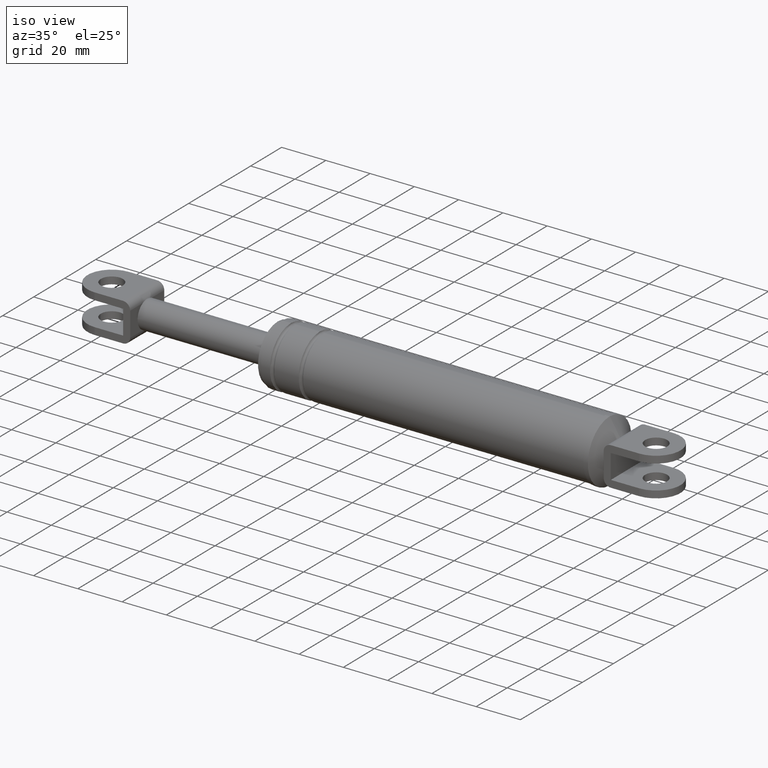
[diagram: clean part render]
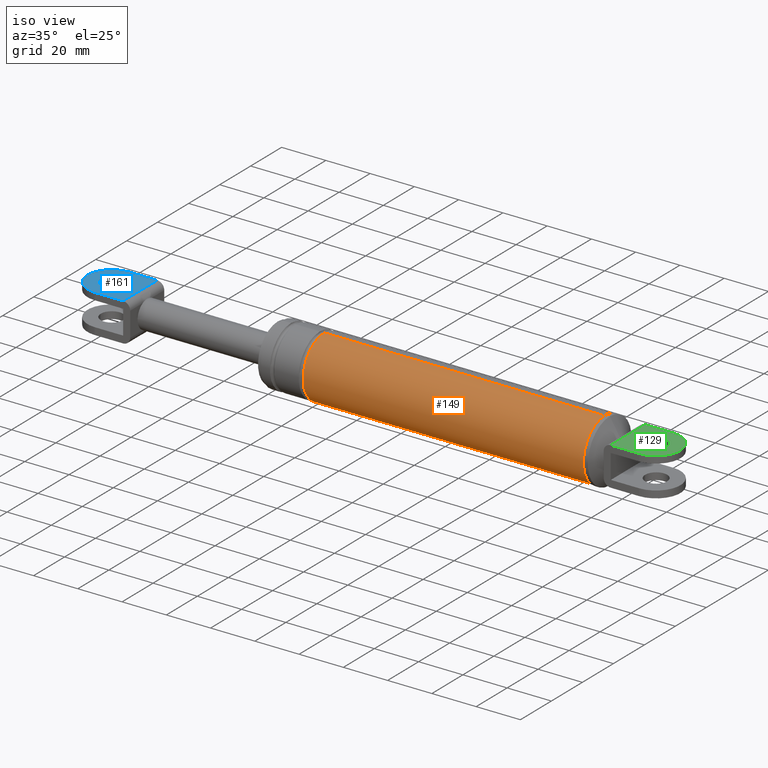
[diagram: same view with three faces highlighted in distinct colors, each labeled with its STEP entity id]
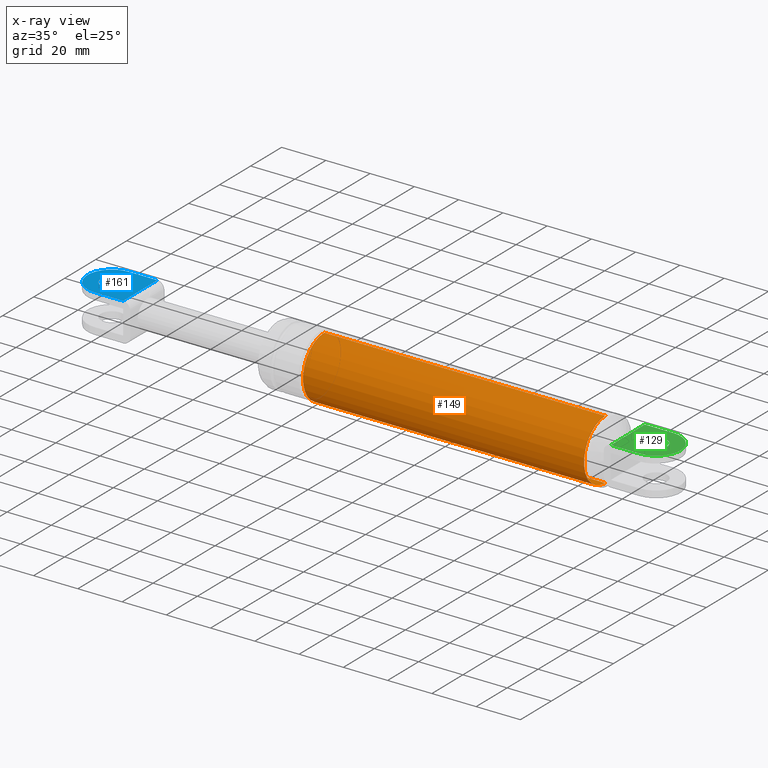
[diagram: x-ray of the same camera — body ghosted, the three highlighted faces saturated]
A machine part, iso view with three faces highlighted in distinct colors.
The next image is the same camera in x-ray (body ghosted, the three faces saturated) — at least one of them is partly hidden behind the body in this view.
Their STEP definitions:

[orange] entity #149 — the highlighted cylindrical surface (partial cylindrical patch) has radius 13.7 mm, axis along (-1, -0, -0).
#149=ADVANCED_FACE('',(#553),#552,.T.);
#552=CYLINDRICAL_SURFACE('',#1564,1.37000000000E+001);
#553=FACE_OUTER_BOUND('',#1565,.T.);
#1561=CARTESIAN_POINT('',(1.75331797029E+002,-1.11130927453E-013,1.19820542859E+002));
#1562=DIRECTION('',(-1.00000000000E+000,-1.46694769862E-015,-3.54452212500E-031));
#1563=DIRECTION('',(1.15450556906E-029,-8.11174652940E-015,1.00000000000E+000));
#1564=AXIS2_PLACEMENT_3D('',#1561,#1562,#1563);
#1565=EDGE_LOOP('',(#2145,#2146,#2147,#2148));
#2145=ORIENTED_EDGE('',*,*,#2316,.T.);
#2146=ORIENTED_EDGE('',*,*,#2371,.T.);
#2147=ORIENTED_EDGE('',*,*,#2370,.F.);
#2148=ORIENTED_EDGE('',*,*,#2372,.F.);
#2316=EDGE_CURVE('',#2671,#2670,#2678,.T.);
#2370=EDGE_CURVE('',#3016,#3009,#3029,.T.);
#2371=EDGE_CURVE('',#2670,#3009,#3035,.T.);
#2372=EDGE_CURVE('',#2671,#3016,#3041,.T.);
#2670=VERTEX_POINT('',#3622);
#2671=VERTEX_POINT('',#3623);
#2678=CIRCLE('',#3631,1.37000000000E+001);
#3009=VERTEX_POINT('',#3837);
#3016=VERTEX_POINT('',#3843);
#3029=CIRCLE('',#3858,1.37000000000E+001);
#3035=(BOUNDED_CURVE() B_SPLINE_CURVE(1,(#3859,#3860),.UNSPECIFIED.,.F.,.F.) B_SPLINE_CURVE_WITH_KNOTS((2,2),(6.80272107940E-002,9.31972788954E-001),.UNSPECIFIED.) CURVE() GEOMETRIC_REPRESENTATION_ITEM() RATIONAL_B_SPLINE_CURVE((1.00000000000E+000,1.00000000000E+000)) REPRESENTATION_ITEM('') );
#3041=(BOUNDED_CURVE() B_SPLINE_CURVE(1,(#3861,#3862),.UNSPECIFIED.,.F.,.F.) B_SPLINE_CURVE_WITH_KNOTS((2,2),(6.80272108844E-002,9.31972789116E-001),.UNSPECIFIED.) CURVE() GEOMETRIC_REPRESENTATION_ITEM() RATIONAL_B_SPLINE_CURVE((7.50000000000E-001,7.50000000000E-001)) REPRESENTATION_ITEM('') );
#3622=CARTESIAN_POINT('',(3.12331797029E+002,2.30926389122E-014,1.33520542859E+002));
#3623=CARTESIAN_POINT('',(3.12331797029E+002,7.52689430633E-015,1.06120542859E+002));
#3628=CARTESIAN_POINT('',(3.12331797029E+002,1.12117697108E-014,1.19820542859E+002));
#3629=DIRECTION('',(-1.00000000000E+000,1.46694769862E-015,1.38016011913E-030));
#3630=DIRECTION('',(-2.60582257749E-030,-8.35518852861E-016,-1.00000000000E+000));
#3631=AXIS2_PLACEMENT_3D('',#3628,#3629,#3630);
#3837=CARTESIAN_POINT('',(1.85331797029E+002,2.30926389122E-014,1.33520542859E+002));
#3843=CARTESIAN_POINT('',(1.85331797029E+002,7.52689430633E-015,1.06120542859E+002));
#3855=CARTESIAN_POINT('',(1.85331797029E+002,1.12117697108E-014,1.19820542859E+002));
#3856=DIRECTION('',(-1.00000000000E+000,-7.33473849312E-016,-6.90080059566E-031));
#3857=DIRECTION('',(1.30291128875E-030,-8.35518852861E-016,-1.00000000000E+000));
#3858=AXIS2_PLACEMENT_3D('',#3855,#3856,#3857);
#3859=CARTESIAN_POINT('',(3.12331797042E+002,-2.12900201747E-014,1.33520542859E+002));
#3860=CARTESIAN_POINT('',(1.85331797052E+002,-2.07592377885E-013,1.33520542859E+002));
#3861=CARTESIAN_POINT('',(3.12331797029E+002,2.00869303554E-013,1.06120542859E+002));
#3862=CARTESIAN_POINT('',(1.85331797029E+002,1.46619929601E-014,1.06120542859E+002));

[blue] entity #161 — the highlighted planar face has unit normal (0, 0, 1).
#161=ADVANCED_FACE('',(#674,#675),#673,.T.);
#673=PLANE('',#1894);
#674=FACE_OUTER_BOUND('',#1895,.T.);
#675=FACE_BOUND('',#1896,.T.);
#1891=CARTESIAN_POINT('',(7.59428807869E+001,-1.32000000000E+001,1.28520539859E+002));
#1892=DIRECTION('',(0.00000000000E+000,0.00000000000E+000,1.00000000000E+000));
#1893=DIRECTION('',(1.00000000000E+000,0.00000000000E+000,0.00000000000E+000));
#1894=AXIS2_PLACEMENT_3D('',#1891,#1892,#1893);
#1895=EDGE_LOOP('',(#2211,#2212,#2213,#2214,#2215,#2216));
#1896=EDGE_LOOP('',(#2217,#2218));
#2211=ORIENTED_EDGE('',*,*,#2381,.F.);
#2212=ORIENTED_EDGE('',*,*,#2403,.T.);
#2213=ORIENTED_EDGE('',*,*,#2401,.T.);
#2214=ORIENTED_EDGE('',*,*,#2417,.T.);
#2215=ORIENTED_EDGE('',*,*,#2388,.T.);
#2216=ORIENTED_EDGE('',*,*,#2418,.T.);
#2217=ORIENTED_EDGE('',*,*,#2419,.F.);
#2218=ORIENTED_EDGE('',*,*,#2420,.F.);
#2381=EDGE_CURVE('',#3095,#3102,#3103,.T.);
#2388=EDGE_CURVE('',#3149,#3150,#3151,.T.);
#2401=EDGE_CURVE('',#3211,#3233,#3240,.T.);
#2403=EDGE_CURVE('',#3095,#3211,#3252,.T.);
#2417=EDGE_CURVE('',#3233,#3149,#3343,.T.);
#2418=EDGE_CURVE('',#3150,#3102,#3349,.T.);
#2419=EDGE_CURVE('',#3355,#3356,#3357,.T.);
#2420=EDGE_CURVE('',#3356,#3355,#3363,.T.);
#3095=VERTEX_POINT('',#3888);
#3102=VERTEX_POINT('',#3893);
#3103=LINE('',#3894,#3895);
#3149=VERTEX_POINT('',#3920);
#3150=VERTEX_POINT('',#3921);
#3151=LINE('',#3922,#3923);
#3211=VERTEX_POINT('',#3957);
#3233=VERTEX_POINT('',#3973);
#3240=(BOUNDED_CURVE() B_SPLINE_CURVE(3,(#3978,#3979,#3980,#3981,#3982,#3983,#3984,#3985,#3986,#3987),.UNSPECIFIED.,.F.,.F.) B_SPLINE_CURVE_WITH_KNOTS((4,2,2,2,4),(0.00000000000E+000,1.48458878572E-003,2.96917757145E-003,4.45376635717E-003,5.93835514290E-003),.UNSPECIFIED.) CURVE() GEOMETRIC_REPRESENTATION_ITEM() RATIONAL_B_SPLINE_CURVE((1.00000000000E+000,1.00000000000E+000,1.00000000000E+000,1.00000000000E+000,1.00000000000E+000,1.00000000000E+000,1.00000000000E+000,1.00000000000E+000,1.00000000000E+000,1.00000000000E+000)) REPRESENTATION_ITEM('') );
#3252=LINE('',#3991,#3992);
#3343=LINE('',#4055,#4056);
#3349=CIRCLE('',#4061,1.10000000000E+001);
#3355=VERTEX_POINT('',#4062);
#3356=VERTEX_POINT('',#4063);
#3357=CIRCLE('',#4067,5.00000000000E+000);
#3363=CIRCLE('',#4071,5.00000000000E+000);
#3888=CARTESIAN_POINT('',(1.02131797029E+002,-1.10000000000E+001,1.28520539859E+002));
#3893=CARTESIAN_POINT('',(8.93317960687E+001,-1.10000000000E+001,1.28520539859E+002));
#3894=CARTESIAN_POINT('',(1.02131797029E+002,-1.10000000000E+001,1.28520539859E+002));
#3895=VECTOR('',#3896,1.28000009599E+001);
#3896=DIRECTION('',(-1.00000000000E+000,0.00000000000E+000,0.00000000000E+000));
#3920=CARTESIAN_POINT('',(1.02131797029E+002,1.10000000000E+001,1.28520539859E+002));
#3921=CARTESIAN_POINT('',(8.93317960687E+001,1.10000000000E+001,1.28520539859E+002));
#3922=CARTESIAN_POINT('',(1.02131797029E+002,1.10000000000E+001,1.28520539859E+002));
#3923=VECTOR('',#3924,1.28000009599E+001);
#3924=DIRECTION('',(-1.00000000000E+000,0.00000000000E+000,0.00000000000E+000));
#3957=CARTESIAN_POINT('',(1.02131797029E+002,-2.96859107996E+000,1.28520539859E+002));
#3973=CARTESIAN_POINT('',(1.02131797029E+002,2.96859107996E+000,1.28520539859E+002));
#3978=CARTESIAN_POINT('',(1.02131797029E+002,-2.96859107996E+000,1.28520539859E+002));
#3979=CARTESIAN_POINT('',(1.02131797029E+002,-2.47372795974E+000,1.28520539859E+002));
#3980=CARTESIAN_POINT('',(1.02157336786E+002,-1.97942147773E+000,1.28520539859E+002));
#3981=CARTESIAN_POINT('',(1.02202559924E+002,-9.90710003313E-001,1.28520539859E+002));
#3982=CARTESIAN_POINT('',(1.02220899883E+002,-4.96254738101E-001,1.28520539859E+002));
#3983=CARTESIAN_POINT('',(1.02220959446E+002,4.93509042159E-001,1.28520539859E+002));
#3984=CARTESIAN_POINT('',(1.02202644824E+002,9.88746016336E-001,1.28520539859E+002));
#3985=CARTESIAN_POINT('',(1.02157391557E+002,1.97833152203E+000,1.28520539859E+002));
#3986=CARTESIAN_POINT('',(1.02131797029E+002,2.47302251272E+000,1.28520539859E+002));
#3987=CARTESIAN_POINT('',(1.02131797029E+002,2.96859107996E+000,1.28520539859E+002));
#3991=CARTESIAN_POINT('',(1.02131797029E+002,-1.10000000000E+001,1.28520539859E+002));
#3992=VECTOR('',#3993,8.03140892004E+000);
#3993=DIRECTION('',(0.00000000000E+000,1.00000000000E+000,0.00000000000E+000));
#4055=CARTESIAN_POINT('',(1.02131797029E+002,2.96859107996E+000,1.28520539859E+002));
#4056=VECTOR('',#4057,8.03140892004E+000);
#4057=DIRECTION('',(0.00000000000E+000,1.00000000000E+000,0.00000000000E+000));
#4058=CARTESIAN_POINT('',(8.93317970286E+001,0.00000000000E+000,1.28520539859E+002));
#4059=DIRECTION('',(0.00000000000E+000,0.00000000000E+000,1.00000000000E+000));
#4060=DIRECTION('',(8.72664675068E-008,-1.00000000000E+000,-0.00000000000E+000));
#4061=AXIS2_PLACEMENT_3D('',#4058,#4059,#4060);
#4062=CARTESIAN_POINT('',(8.43317970286E+001,-5.92118946467E-016,1.28520539859E+002));
#4063=CARTESIAN_POINT('',(9.43317970286E+001,-6.12323399574E-016,1.28520539859E+002));
#4064=CARTESIAN_POINT('',(8.93317970286E+001,-3.06161699787E-016,1.28520539859E+002));
#4065=DIRECTION('',(-1.23051628678E-031,2.00971834712E-015,1.00000000000E+000));
#4066=DIRECTION('',(1.00000000000E+000,6.12282954249E-017,-0.00000000000E+000));
#4067=AXIS2_PLACEMENT_3D('',#4064,#4065,#4066);
#4068=CARTESIAN_POINT('',(8.93317970286E+001,-3.06161699787E-016,1.28520539859E+002));
#4069=DIRECTION('',(-1.23051628678E-031,2.00971834712E-015,1.00000000000E+000));
#4070=DIRECTION('',(1.00000000000E+000,6.12282954249E-017,-0.00000000000E+000));
#4071=AXIS2_PLACEMENT_3D('',#4068,#4069,#4070);

[green] entity #129 — the highlighted planar face has unit normal (0, 0, 1).
#129=ADVANCED_FACE('',(#350,#351),#349,.T.);
#349=PLANE('',#1325);
#350=FACE_OUTER_BOUND('',#1326,.T.);
#351=FACE_BOUND('',#1327,.T.);
#1322=CARTESIAN_POINT('',(3.48715894405E+002,-1.32000011519E+001,1.28520539859E+002));
#1323=DIRECTION('',(0.00000000000E+000,-0.00000000000E+000,1.00000000000E+000));
#1324=DIRECTION('',(0.00000000000E+000,1.00000000000E+000,0.00000000000E+000));
#1325=AXIS2_PLACEMENT_3D('',#1322,#1323,#1324);
#1326=EDGE_LOOP('',(#2051,#2052,#2053,#2054,#2055,#2056));
#1327=EDGE_LOOP('',(#2057,#2058));
#2051=ORIENTED_EDGE('',*,*,#2309,.F.);
#2052=ORIENTED_EDGE('',*,*,#2333,.T.);
#2053=ORIENTED_EDGE('',*,*,#2328,.T.);
#2054=ORIENTED_EDGE('',*,*,#2325,.T.);
#2055=ORIENTED_EDGE('',*,*,#2303,.T.);
#2056=ORIENTED_EDGE('',*,*,#2336,.T.);
#2057=ORIENTED_EDGE('',*,*,#2339,.F.);
#2058=ORIENTED_EDGE('',*,*,#2340,.F.);
#2303=EDGE_CURVE('',#2588,#2581,#2589,.T.);
#2309=EDGE_CURVE('',#2623,#2630,#2631,.T.);
#2325=EDGE_CURVE('',#2738,#2588,#2739,.T.);
#2328=EDGE_CURVE('',#2758,#2738,#2759,.T.);
#2333=EDGE_CURVE('',#2623,#2758,#2791,.T.);
#2336=EDGE_CURVE('',#2581,#2630,#2809,.T.);
#2339=EDGE_CURVE('',#2827,#2828,#2829,.T.);
#2340=EDGE_CURVE('',#2828,#2827,#2835,.T.);
#2581=VERTEX_POINT('',#3567);
#2588=VERTEX_POINT('',#3571);
#2589=LINE('',#3572,#3573);
#2623=VERTEX_POINT('',#3593);
#2630=VERTEX_POINT('',#3598);
#2631=LINE('',#3599,#3600);
#2738=VERTEX_POINT('',#3668);
#2739=LINE('',#3669,#3670);
#2758=VERTEX_POINT('',#3680);
#2759=(BOUNDED_CURVE() B_SPLINE_CURVE(3,(#3681,#3682,#3683,#3684,#3685,#3686,#3687,#3688,#3689,#3690),.UNSPECIFIED.,.F.,.F.) B_SPLINE_CURVE_WITH_KNOTS((4,2,2,2,4),(0.00000000000E+000,1.21207515280E-003,2.42415030559E-003,3.63622545839E-003,4.84830061118E-003),.UNSPECIFIED.) CURVE() GEOMETRIC_REPRESENTATION_ITEM() RATIONAL_B_SPLINE_CURVE((1.00000000000E+000,1.00000000000E+000,1.00000000000E+000,1.00000000000E+000,1.00000000000E+000,1.00000000000E+000,1.00000000000E+000,1.00000000000E+000,1.00000000000E+000,1.00000000000E+000)) REPRESENTATION_ITEM('') );
#2791=LINE('',#3708,#3709);
#2809=CIRCLE('',#3722,1.10000000000E+001);
#2827=VERTEX_POINT('',#3731);
#2828=VERTEX_POINT('',#3732);
#2829=CIRCLE('',#3736,5.00000000000E+000);
#2835=CIRCLE('',#3740,5.00000000000E+000);
#3567=CARTESIAN_POINT('',(3.35331796069E+002,-1.10000000000E+001,1.28520539859E+002));
#3571=CARTESIAN_POINT('',(3.22531797029E+002,-1.10000000000E+001,1.28520539859E+002));
#3572=CARTESIAN_POINT('',(3.22531797029E+002,-1.10000000000E+001,1.28520539859E+002));
#3573=VECTOR('',#3574,1.27999990401E+001);
#3574=DIRECTION('',(1.00000000000E+000,0.00000000000E+000,0.00000000000E+000));
#3593=CARTESIAN_POINT('',(3.22531797029E+002,1.10000000000E+001,1.28520539859E+002));
#3598=CARTESIAN_POINT('',(3.35331796069E+002,1.10000000000E+001,1.28520539859E+002));
#3599=CARTESIAN_POINT('',(3.22531797029E+002,1.10000000000E+001,1.28520539859E+002));
#3600=VECTOR('',#3601,1.27999990401E+001);
#3601=DIRECTION('',(1.00000000000E+000,0.00000000000E+000,0.00000000000E+000));
#3668=CARTESIAN_POINT('',(3.22531797029E+002,-2.42391066068E+000,1.28520539859E+002));
#3669=CARTESIAN_POINT('',(3.22531797029E+002,-2.42391066068E+000,1.28520539859E+002));
#3670=VECTOR('',#3671,8.57608933932E+000);
#3671=DIRECTION('',(0.00000000000E+000,-1.00000000000E+000,0.00000000000E+000));
#3680=CARTESIAN_POINT('',(3.22531797029E+002,2.42391066068E+000,1.28520539859E+002));
#3681=CARTESIAN_POINT('',(3.22531797029E+002,2.42391066068E+000,1.28520539859E+002));
#3682=CARTESIAN_POINT('',(3.22531797029E+002,2.01983373493E+000,1.28520539859E+002));
#3683=CARTESIAN_POINT('',(3.22519690399E+002,1.61595082018E+000,1.28520539859E+002));
#3684=CARTESIAN_POINT('',(3.22498983566E+002,8.08128799520E-001,1.28520539859E+002));
#3685=CARTESIAN_POINT('',(3.22490825770E+002,4.04182603972E-001,1.28520539859E+002));
#3686=CARTESIAN_POINT('',(3.22490823261E+002,-4.03971207306E-001,1.28520539859E+002));
#3687=CARTESIAN_POINT('',(3.22498980300E+002,-8.07992361936E-001,1.28520539859E+002));
#3688=CARTESIAN_POINT('',(3.22519688236E+002,-1.61587544957E+000,1.28520539859E+002));
#3689=CARTESIAN_POINT('',(3.22531797029E+002,-2.01978594962E+000,1.28520539859E+002));
#3690=CARTESIAN_POINT('',(3.22531797029E+002,-2.42391066068E+000,1.28520539859E+002));
#3708=CARTESIAN_POINT('',(3.22531797029E+002,1.10000000000E+001,1.28520539859E+002));
#3709=VECTOR('',#3710,8.57608933932E+000);
#3710=DIRECTION('',(0.00000000000E+000,-1.00000000000E+000,0.00000000000E+000));
#3719=CARTESIAN_POINT('',(3.35331797029E+002,0.00000000000E+000,1.28520539859E+002));
#3720=DIRECTION('',(9.13508299739E-016,-7.97186270143E-023,1.00000000000E+000));
#3721=DIRECTION('',(-8.72664508346E-008,-1.00000000000E+000,1.11868806813E-031));
#3722=AXIS2_PLACEMENT_3D('',#3719,#3720,#3721);
#3731=CARTESIAN_POINT('',(3.30331797029E+002,-5.92118946467E-016,1.28520539859E+002));
#3732=CARTESIAN_POINT('',(3.40331797029E+002,-6.12323399574E-016,1.28520539859E+002));
#3733=CARTESIAN_POINT('',(3.35331797029E+002,-3.06161699787E-016,1.28520539859E+002));
#3734=DIRECTION('',(-1.23051628678E-031,2.00971834712E-015,1.00000000000E+000));
#3735=DIRECTION('',(1.00000000000E+000,6.12282954249E-017,-0.00000000000E+000));
#3736=AXIS2_PLACEMENT_3D('',#3733,#3734,#3735);
#3737=CARTESIAN_POINT('',(3.35331797029E+002,-3.06161699787E-016,1.28520539859E+002));
#3738=DIRECTION('',(-1.23051628678E-031,2.00971834712E-015,1.00000000000E+000));
#3739=DIRECTION('',(1.00000000000E+000,6.12282954249E-017,-0.00000000000E+000));
#3740=AXIS2_PLACEMENT_3D('',#3737,#3738,#3739);